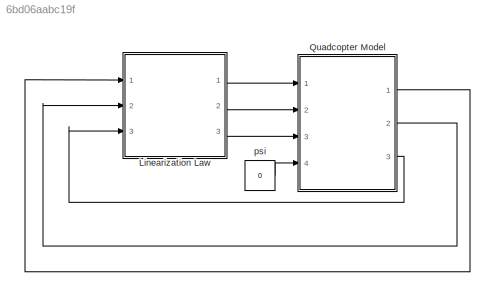
MODEL slx_6bd06aabc19f
KIND model
CONFIG AbsTol = auto
CONFIG EnableMultiTasking = off
CONFIG FixedStep = 0.001
CONFIG MaxStep = auto
CONFIG MinStep = auto
CONFIG RelTol = 1e-3
CONFIG SampleTimeConstraint = Unconstrained
CONFIG Solver = ode45
CONFIG SolverName = ode45
CONFIG StartTime = 0.0
CONFIG StopTime = 10
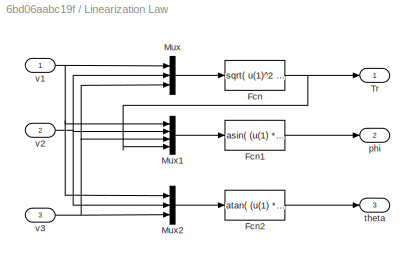
BLOCK [SubSystem] Linearization Law
  Ports = [3, 3]
  RequestExecContextInheritance = off
  Variant = off
BLOCK [Fcn] Linearization Law/Fcn
  Expr = sqrt( u(1)^2 +u(2)^2 + (u(3) + g)^2)
BLOCK [Fcn] Linearization Law/Fcn1
  Expr = asin( (u(1) * sin(psi) - u(2) * sin(psi) ) / u(4) )
BLOCK [Fcn] Linearization Law/Fcn2
  Expr = atan( (u(1) * cos(psi) + u(2) * sin(psi)) / (u(3) + g) )
BLOCK [Mux] Linearization Law/Mux
  DisplayOption = bar
  Inputs = 3
  Ports = [3, 1]
BLOCK [Mux] Linearization Law/Mux1
  DisplayOption = bar
  Ports = [4, 1]
BLOCK [Mux] Linearization Law/Mux2
  DisplayOption = bar
  Inputs = 3
  Ports = [3, 1]
BLOCK [Outport] Linearization Law/Tr
  IconDisplay = Port number
BLOCK [Outport] Linearization Law/phi
  IconDisplay = Port number
  Port = 2
BLOCK [Outport] Linearization Law/theta 
  IconDisplay = Port number
  Port = 3
BLOCK [Inport] Linearization Law/v1
  IconDisplay = Port number
BLOCK [Inport] Linearization Law/v2
  IconDisplay = Port number
  Port = 2
BLOCK [Inport] Linearization Law/v3
  IconDisplay = Port number
  Port = 3
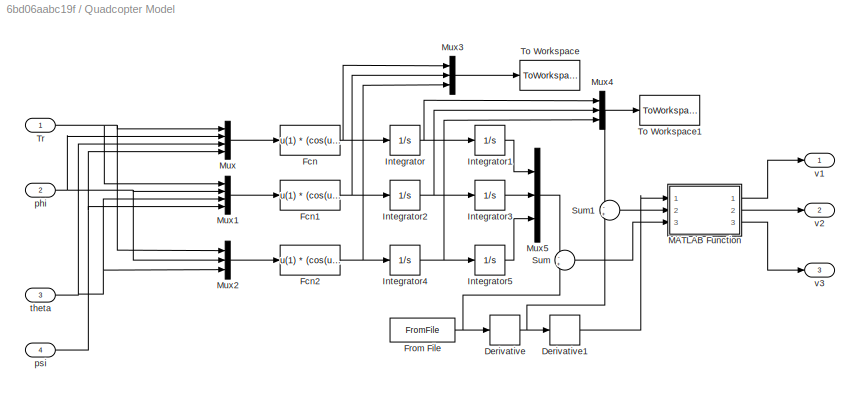
BLOCK [SubSystem] Quadcopter Model
  Ports = [4, 3]
  RequestExecContextInheritance = off
  Variant = off
BLOCK [Derivative] Quadcopter Model/Derivative
BLOCK [Derivative] Quadcopter Model/Derivative1
BLOCK [Fcn] Quadcopter Model/Fcn
  Expr = u(1) * (cos(u(2)) * sin(u(3)) * cos(u(4)) + sin(u(2)) * sin(u(4)) )
BLOCK [Fcn] Quadcopter Model/Fcn1
  Expr = u(1) * (cos(u(2)) * sin(u(3)) * sin(u(4)) - sin(u(2)) * cos(u(4)) )
BLOCK [Fcn] Quadcopter Model/Fcn2
  Expr = u(1) * (cos(u(2)) * cos(u(3)))
BLOCK [FromFile] Quadcopter Model/From File
  FileName = trajectory.mat
  SampleTime = 0
BLOCK [Integrator] Quadcopter Model/Integrator
  InitialCondition = 5
  Ports = [1, 1]
BLOCK [Integrator] Quadcopter Model/Integrator1
  Ports = [1, 1]
BLOCK [Integrator] Quadcopter Model/Integrator2
  InitialCondition = 0.1
  Ports = [1, 1]
BLOCK [Integrator] Quadcopter Model/Integrator3
  Ports = [1, 1]
BLOCK [Integrator] Quadcopter Model/Integrator4
  InitialCondition = 0.1
  Ports = [1, 1]
BLOCK [Integrator] Quadcopter Model/Integrator5
  Ports = [1, 1]
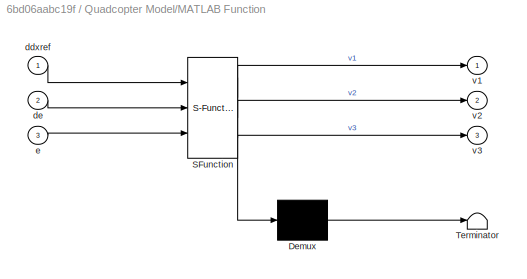
BLOCK [SubSystem] Quadcopter Model/MATLAB Function
  ErrorFcn = Stateflow.Translate.translate
  PermitHierarchicalResolution = ExplicitOnly
  Ports = [3, 3]
  RequestExecContextInheritance = off
  SFBlockType = MATLAB Function
  TreatAsAtomicUnit = on
  Variant = off
BLOCK [Demux] Quadcopter Model/MATLAB Function/ Demux 
  Outputs = 1
  Ports = [1, 1]
BLOCK [S-Function] Quadcopter Model/MATLAB Function/ SFunction 
  EnableBusSupport = on
  FunctionName = sf_sfun
  PortCounts = [3 4]
  Ports = [3, 4]
  SFcnIsStateOwnerBlock = off
  SFunctionDeploymentMode = off
  Tag = Stateflow S-Function Sim2 2
BLOCK [Terminator] Quadcopter Model/MATLAB Function/ Terminator 
BLOCK [Inport] Quadcopter Model/MATLAB Function/ddxref
  IconDisplay = Port number
BLOCK [Inport] Quadcopter Model/MATLAB Function/de
  IconDisplay = Port number
  Port = 2
BLOCK [Inport] Quadcopter Model/MATLAB Function/e
  IconDisplay = Port number
  Port = 3
BLOCK [Outport] Quadcopter Model/MATLAB Function/v1
  IconDisplay = Port number
BLOCK [Outport] Quadcopter Model/MATLAB Function/v2
  IconDisplay = Port number
  Port = 2
BLOCK [Outport] Quadcopter Model/MATLAB Function/v3
  IconDisplay = Port number
  Port = 3
BLOCK [Mux] Quadcopter Model/Mux
  DisplayOption = bar
  Ports = [4, 1]
BLOCK [Mux] Quadcopter Model/Mux1
  DisplayOption = bar
  Ports = [4, 1]
BLOCK [Mux] Quadcopter Model/Mux2
  DisplayOption = bar
  Inputs = 3
  Ports = [3, 1]
BLOCK [Mux] Quadcopter Model/Mux3
  DisplayOption = bar
  Inputs = 3
  Ports = [3, 1]
BLOCK [Mux] Quadcopter Model/Mux4
  DisplayOption = bar
  Inputs = 3
  Ports = [3, 1]
BLOCK [Mux] Quadcopter Model/Mux5
  DisplayOption = bar
  Inputs = 3
  Ports = [3, 1]
BLOCK [Sum] Quadcopter Model/Sum
  IconShape = round
  InputSameDT = off
  Inputs = -+
  OutDataTypeStr = Inherit: Inherit via internal rule
  Ports = [2, 1]
  SaturateOnIntegerOverflow = off
BLOCK [Sum] Quadcopter Model/Sum1
  IconShape = round
  InputSameDT = off
  Inputs = -+
  OutDataTypeStr = Inherit: Inherit via internal rule
  Ports = [2, 1]
  SaturateOnIntegerOverflow = off
BLOCK [ToWorkspace] Quadcopter Model/To Workspace
  FixptAsFi = on
  MaxDataPoints = inf
  Ports = [1]
  SampleTime = -1
  Save2DSignal = 3-D array (concatenate along third dimension)
  SaveFormat = Timeseries
  VariableName = Acc
BLOCK [ToWorkspace] Quadcopter Model/To Workspace1
  FixptAsFi = on
  MaxDataPoints = inf
  Ports = [1]
  SampleTime = -1
  Save2DSignal = 3-D array (concatenate along third dimension)
  SaveFormat = Timeseries
  VariableName = Velo
BLOCK [Inport] Quadcopter Model/Tr
  IconDisplay = Port number
BLOCK [Inport] Quadcopter Model/phi
  IconDisplay = Port number
  Port = 2
BLOCK [Inport] Quadcopter Model/psi
  IconDisplay = Port number
  Port = 4
BLOCK [Inport] Quadcopter Model/theta
  IconDisplay = Port number
  Port = 3
BLOCK [Outport] Quadcopter Model/v1
  IconDisplay = Port number
BLOCK [Outport] Quadcopter Model/v2
  IconDisplay = Port number
  Port = 2
BLOCK [Outport] Quadcopter Model/v3
  IconDisplay = Port number
  Port = 3
BLOCK [Constant] psi
  Value = 0
LINE Linearization Law/Fcn1:1 -> Linearization Law/phi:1
LINE Linearization Law/Fcn2:1 -> Linearization Law/theta :1
NET Linearization Law/Fcn:1 -> Linearization Law/Mux1:4, Linearization Law/Tr:1
LINE Linearization Law/Mux1:1 -> Linearization Law/Fcn1:1
LINE Linearization Law/Mux2:1 -> Linearization Law/Fcn2:1
LINE Linearization Law/Mux:1 -> Linearization Law/Fcn:1
NET Linearization Law/v1:1 -> Linearization Law/Mux1:1, Linearization Law/Mux2:1, Linearization Law/Mux:1
NET Linearization Law/v2:1 -> Linearization Law/Mux1:2, Linearization Law/Mux2:2, Linearization Law/Mux:2
NET Linearization Law/v3:1 -> Linearization Law/Mux1:3, Linearization Law/Mux2:3, Linearization Law/Mux:3
LINE Linearization Law:1 -> Quadcopter Model:1
LINE Linearization Law:2 -> Quadcopter Model:2
LINE Linearization Law:3 -> Quadcopter Model:3
LINE Quadcopter Model/Derivative1:1 -> Quadcopter Model/MATLAB Function:1
NET Quadcopter Model/Derivative:1 -> Quadcopter Model/Derivative1:1, Quadcopter Model/Sum1:2
NET Quadcopter Model/Fcn1:1 -> Quadcopter Model/Integrator2:1, Quadcopter Model/Mux3:2
NET Quadcopter Model/Fcn2:1 -> Quadcopter Model/Integrator4:1, Quadcopter Model/Mux3:3
NET Quadcopter Model/Fcn:1 -> Quadcopter Model/Integrator:1, Quadcopter Model/Mux3:1
NET Quadcopter Model/From File:1 -> Quadcopter Model/Derivative:1, Quadcopter Model/Sum:2
LINE Quadcopter Model/Integrator1:1 -> Quadcopter Model/Mux5:1
NET Quadcopter Model/Integrator2:1 -> Quadcopter Model/Integrator3:1, Quadcopter Model/Mux4:2
LINE Quadcopter Model/Integrator3:1 -> Quadcopter Model/Mux5:2
NET Quadcopter Model/Integrator4:1 -> Quadcopter Model/Integrator5:1, Quadcopter Model/Mux4:3
LINE Quadcopter Model/Integrator5:1 -> Quadcopter Model/Mux5:3
NET Quadcopter Model/Integrator:1 -> Quadcopter Model/Integrator1:1, Quadcopter Model/Mux4:1
LINE Quadcopter Model/MATLAB Function:1 -> Quadcopter Model/v1:1
LINE Quadcopter Model/MATLAB Function:2 -> Quadcopter Model/v2:1
LINE Quadcopter Model/MATLAB Function:3 -> Quadcopter Model/v3:1
LINE Quadcopter Model/Mux1:1 -> Quadcopter Model/Fcn1:1
LINE Quadcopter Model/Mux2:1 -> Quadcopter Model/Fcn2:1
LINE Quadcopter Model/Mux3:1 -> Quadcopter Model/To Workspace:1
NET Quadcopter Model/Mux4:1 -> Quadcopter Model/Sum1:1, Quadcopter Model/To Workspace1:1
LINE Quadcopter Model/Mux5:1 -> Quadcopter Model/Sum:1
LINE Quadcopter Model/Mux:1 -> Quadcopter Model/Fcn:1
LINE Quadcopter Model/Sum1:1 -> Quadcopter Model/MATLAB Function:2
LINE Quadcopter Model/Sum:1 -> Quadcopter Model/MATLAB Function:3
NET Quadcopter Model/Tr:1 -> Quadcopter Model/Mux1:1, Quadcopter Model/Mux2:1, Quadcopter Model/Mux:1
NET Quadcopter Model/phi:1 -> Quadcopter Model/Mux1:2, Quadcopter Model/Mux2:2, Quadcopter Model/Mux:2
NET Quadcopter Model/psi:1 -> Quadcopter Model/Mux1:4, Quadcopter Model/Mux:4
NET Quadcopter Model/theta:1 -> Quadcopter Model/Mux1:3, Quadcopter Model/Mux2:3, Quadcopter Model/Mux:3
LINE Quadcopter Model:1 -> Linearization Law:1
LINE Quadcopter Model:2 -> Linearization Law:2
LINE Quadcopter Model:3 -> Linearization Law:3
LINE psi:1 -> Quadcopter Model:4
note: NET lines group one-source signal fan-out (src -> all destinations, sorted); 1:1 wires keep LINE
CHART Quadcopter Model/MATLAB Function states=1 transitions=1
  STATE_LABEL 'eML_blk_kernel()'
  STATE_LABEL 'SCRIPT:\nfunction [v1,v2,v3] = fcn(ddxref,de,e)\nv1 = ddxref(1) + 4*de(1) * 4*e(1);\nv2 = ddxref(2) + 4*de(2) * 4*e(2);\nv3 = ddxref(3) + 4*de(3) * 4*e(3);\n\n'
